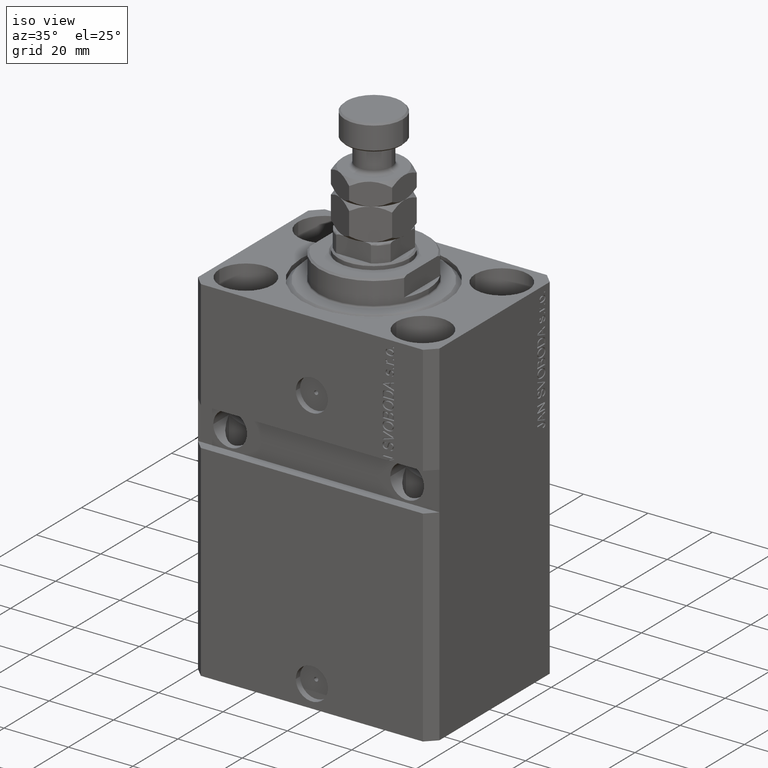
[diagram: clean part render]
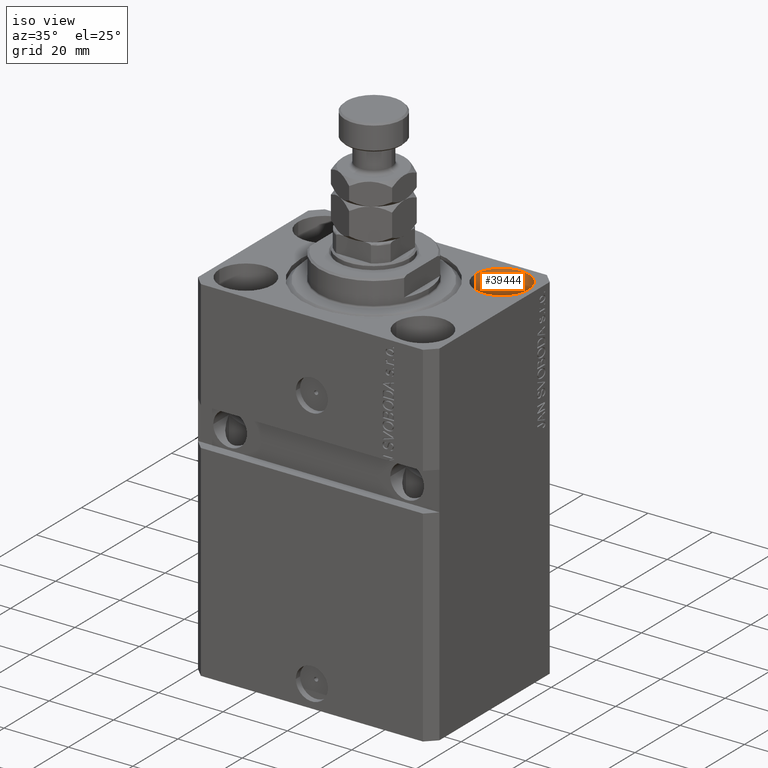
[diagram: same view with one face highlighted and labeled with its STEP entity id]
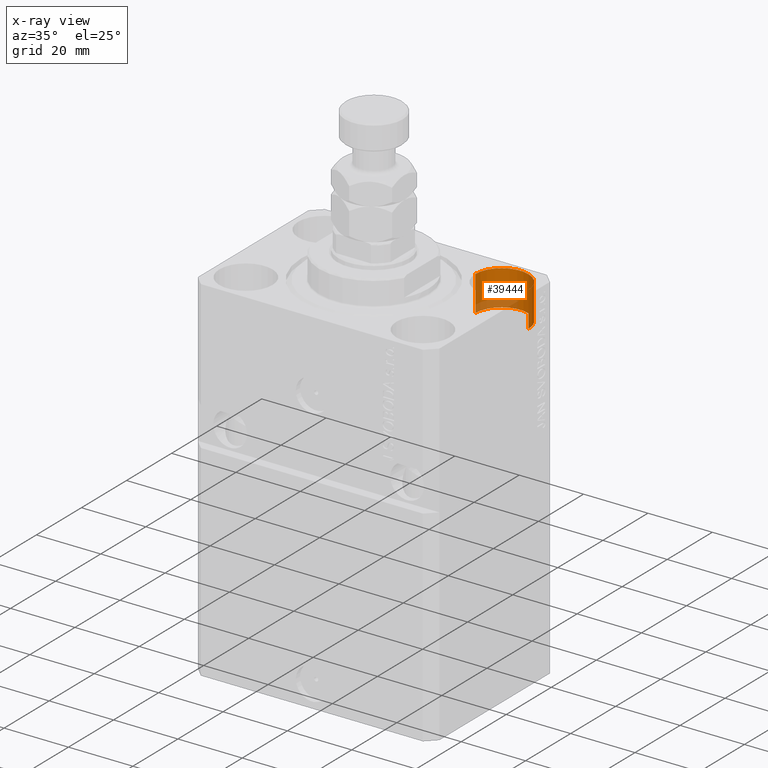
[diagram: x-ray of the same camera — body ghosted, the highlighted face saturated]
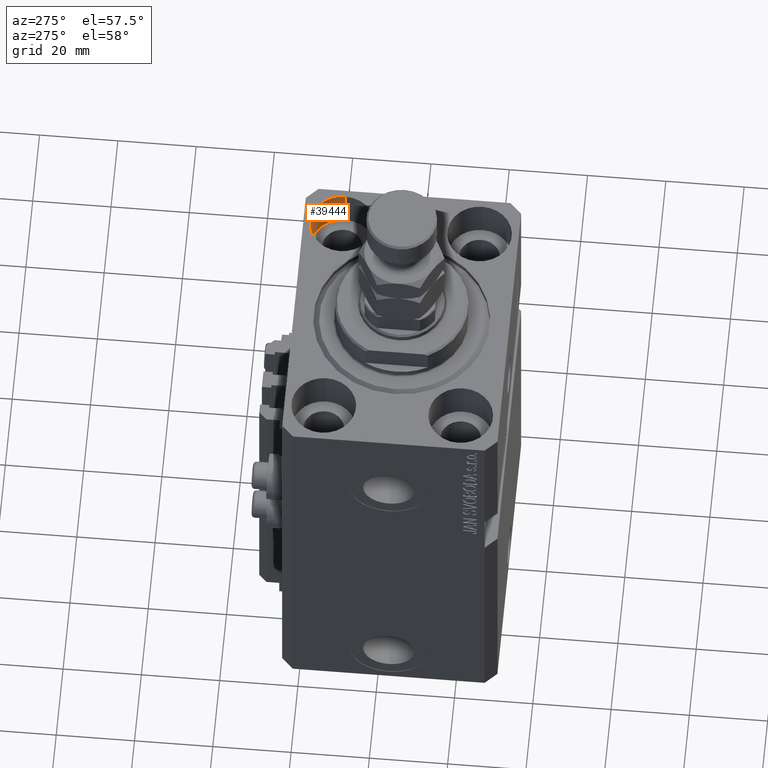
[diagram: same view with one face highlighted and labeled with its STEP entity id]
A machine part, iso view. The second image highlights one B-rep face of the part: STEP entity #39444.
The next image is the same camera in x-ray: the body ghosted, the highlighted face saturated — about 16% of this face is hidden behind the body in this view.
A second angle (auxiliary view) of the same face is appended — the face is thin or edge-on in the first view.
In plain terms, the highlighted cylindrical surface (edge-blend (fillet) strip) has radius 8.25 mm, axis along (0, 0, 1).
Its self-contained STEP definition (entity closure, byte-faithful):
#555 = DIRECTION ( 'NONE',  ( 1.000000000000000000, 0.000000000000000000, 0.000000000000000000 ) ) ;
#825 = CARTESIAN_POINT ( 'NONE',  ( 19.25000000000000000, 17.50000000000001066, -11.00000000000000000 ) ) ;
#2181 = VECTOR ( 'NONE', #23435, 1000.000000000000000 ) ;
#3968 = DIRECTION ( 'NONE',  ( -0.000000000000000000, -0.000000000000000000, 1.000000000000000000 ) ) ;
#5744 = ORIENTED_EDGE ( 'NONE', *, *, #27444, .T. ) ;
#6129 = CIRCLE ( 'NONE', #33512, 8.249999999999992895 ) ;
#6640 = CARTESIAN_POINT ( 'NONE',  ( 35.74999999999999289, 17.50000000000001066, 0.000000000000000000 ) ) ;
#7908 = CARTESIAN_POINT ( 'NONE',  ( 27.49999999999999645, 17.50000000000001066, -11.00000000000000000 ) ) ;
#8461 = LINE ( 'NONE', #34219, #2181 ) ;
#8895 = EDGE_LOOP ( 'NONE', ( #46804, #23804, #24515, #5744 ) ) ;
#10783 = CARTESIAN_POINT ( 'NONE',  ( 27.49999999999999645, 17.50000000000001066, -11.00000000000000000 ) ) ;
#11878 = VERTEX_POINT ( 'NONE', #19373 ) ;
#14703 = DIRECTION ( 'NONE',  ( -0.000000000000000000, -0.000000000000000000, 1.000000000000000000 ) ) ;
#17024 = CIRCLE ( 'NONE', #23295, 8.249999999999992895 ) ;
#19373 = CARTESIAN_POINT ( 'NONE',  ( 35.74999999999999289, 17.50000000000001066, -11.00000000000000000 ) ) ;
#19444 = EDGE_CURVE ( 'NONE', #19996, #42519, #33884, .T. ) ;
#19996 = VERTEX_POINT ( 'NONE', #825 ) ;
#22159 = CARTESIAN_POINT ( 'NONE',  ( 19.25000000000000000, 17.50000000000001066, 0.000000000000000000 ) ) ;
#23295 = AXIS2_PLACEMENT_3D ( 'NONE', #36237, #37869, #28880 ) ;
#23435 = DIRECTION ( 'NONE',  ( -0.000000000000000000, -0.000000000000000000, 1.000000000000000000 ) ) ;
#23804 = ORIENTED_EDGE ( 'NONE', *, *, #30437, .F. ) ;
#24515 = ORIENTED_EDGE ( 'NONE', *, *, #29396, .T. ) ;
#24661 = VECTOR ( 'NONE', #3968, 1000.000000000000000 ) ;
#24834 = CYLINDRICAL_SURFACE ( 'NONE', #40411, 8.249999999999992895 ) ;
#25989 = DIRECTION ( 'NONE',  ( 1.000000000000000000, 0.000000000000000000, 0.000000000000000000 ) ) ;
#26311 = DIRECTION ( 'NONE',  ( 0.000000000000000000, 0.000000000000000000, 1.000000000000000000 ) ) ;
#27444 = EDGE_CURVE ( 'NONE', #44805, #42519, #17024, .T. ) ;
#28880 = DIRECTION ( 'NONE',  ( 1.000000000000000000, 0.000000000000000000, 0.000000000000000000 ) ) ;
#29396 = EDGE_CURVE ( 'NONE', #11878, #44805, #8461, .T. ) ;
#30437 = EDGE_CURVE ( 'NONE', #11878, #19996, #6129, .T. ) ;
#33389 = CARTESIAN_POINT ( 'NONE',  ( 19.25000000000000000, 17.50000000000001066, -11.00000000000000000 ) ) ;
#33512 = AXIS2_PLACEMENT_3D ( 'NONE', #7908, #26311, #555 ) ;
#33884 = LINE ( 'NONE', #33389, #24661 ) ;
#34219 = CARTESIAN_POINT ( 'NONE',  ( 35.74999999999999289, 17.50000000000001066, -11.00000000000000000 ) ) ;
#35862 = FACE_OUTER_BOUND ( 'NONE', #8895, .T. ) ;
#36237 = CARTESIAN_POINT ( 'NONE',  ( 27.49999999999999645, 17.50000000000001066, 0.000000000000000000 ) ) ;
#37869 = DIRECTION ( 'NONE',  ( 0.000000000000000000, 0.000000000000000000, 1.000000000000000000 ) ) ;
#39444 = ADVANCED_FACE ( 'NONE', ( #35862 ), #24834, .F. ) ;
#40411 = AXIS2_PLACEMENT_3D ( 'NONE', #10783, #14703, #25989 ) ;
#42519 = VERTEX_POINT ( 'NONE', #22159 ) ;
#44805 = VERTEX_POINT ( 'NONE', #6640 ) ;
#46804 = ORIENTED_EDGE ( 'NONE', *, *, #19444, .F. ) ;